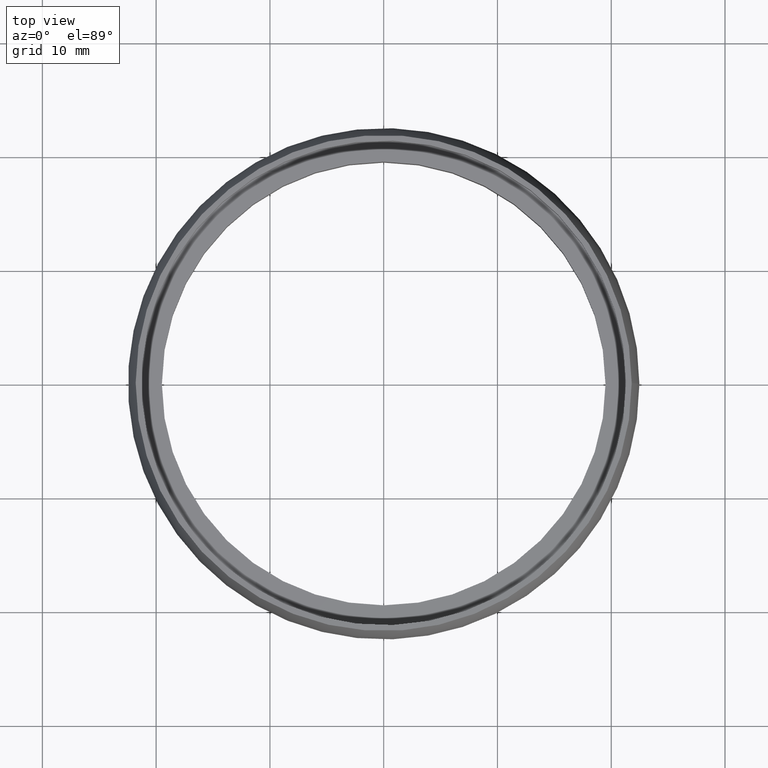
[diagram: clean part render]
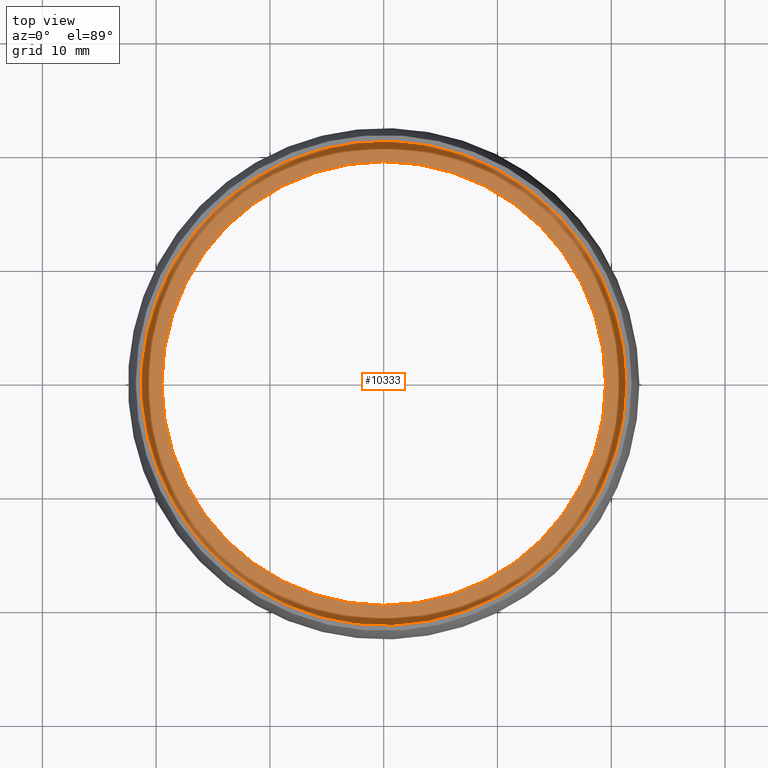
[diagram: same view with one face highlighted and labeled with its STEP entity id]
A machine part, top view. The second image highlights one B-rep face of the part: STEP entity #10333.
In plain terms, the highlighted planar face has unit normal (0, 0, -1).
Its self-contained STEP definition (entity closure, byte-faithful):
#513 = EDGE_CURVE ( 'NONE', #7964, #7964, #11952, .T. ) ;
#1003 = CARTESIAN_POINT ( 'NONE',  ( 0.0000000000000000000, 21.30000000000000100, 2.500000000000000400 ) ) ;
#1351 = DIRECTION ( 'NONE',  ( -0.0000000000000000000, -0.0000000000000000000, 1.000000000000000000 ) ) ;
#1877 = VERTEX_POINT ( 'NONE', #4243 ) ;
#2984 = DIRECTION ( 'NONE',  ( 0.0000000000000000000, 0.0000000000000000000, -1.000000000000000000 ) ) ;
#3346 = DIRECTION ( 'NONE',  ( 1.000000000000000000, 0.0000000000000000000, 0.0000000000000000000 ) ) ;
#3809 = AXIS2_PLACEMENT_3D ( 'NONE', #9145, #1351, #3346 ) ;
#3850 = AXIS2_PLACEMENT_3D ( 'NONE', #6702, #5848, #6820 ) ;
#3987 = DIRECTION ( 'NONE',  ( -1.000000000000000000, 0.0000000000000000000, -0.0000000000000000000 ) ) ;
#4243 = CARTESIAN_POINT ( 'NONE',  ( 19.50000000000000000, 0.0000000000000000000, 2.500000000000000000 ) ) ;
#4964 = AXIS2_PLACEMENT_3D ( 'NONE', #1003, #2984, #3987 ) ;
#5213 = ORIENTED_EDGE ( 'NONE', *, *, #513, .T. ) ;
#5233 = FACE_BOUND ( 'NONE', #12081, .T. ) ;
#5369 = ORIENTED_EDGE ( 'NONE', *, *, #8153, .F. ) ;
#5848 = DIRECTION ( 'NONE',  ( -0.0000000000000000000, -0.0000000000000000000, 1.000000000000000000 ) ) ;
#6315 = CIRCLE ( 'NONE', #3809, 19.50000000000000000 ) ;
#6702 = CARTESIAN_POINT ( 'NONE',  ( 0.0000000000000000000, 0.0000000000000000000, 2.500000000000000400 ) ) ;
#6820 = DIRECTION ( 'NONE',  ( 1.000000000000000000, 0.0000000000000000000, 0.0000000000000000000 ) ) ;
#7668 = PLANE ( 'NONE',  #4964 ) ;
#7795 = EDGE_LOOP ( 'NONE', ( #5213 ) ) ;
#7964 = VERTEX_POINT ( 'NONE', #11140 ) ;
#8105 = FACE_OUTER_BOUND ( 'NONE', #7795, .T. ) ;
#8153 = EDGE_CURVE ( 'NONE', #1877, #1877, #6315, .T. ) ;
#9145 = CARTESIAN_POINT ( 'NONE',  ( 0.0000000000000000000, 0.0000000000000000000, 2.500000000000000000 ) ) ;
#10333 = ADVANCED_FACE ( 'NONE', ( #5233, #8105 ), #7668, .F. ) ;
#11140 = CARTESIAN_POINT ( 'NONE',  ( 21.30000000000000100, 0.0000000000000000000, 2.500000000000000400 ) ) ;
#11952 = CIRCLE ( 'NONE', #3850, 21.30000000000000100 ) ;
#12081 = EDGE_LOOP ( 'NONE', ( #5369 ) ) ;